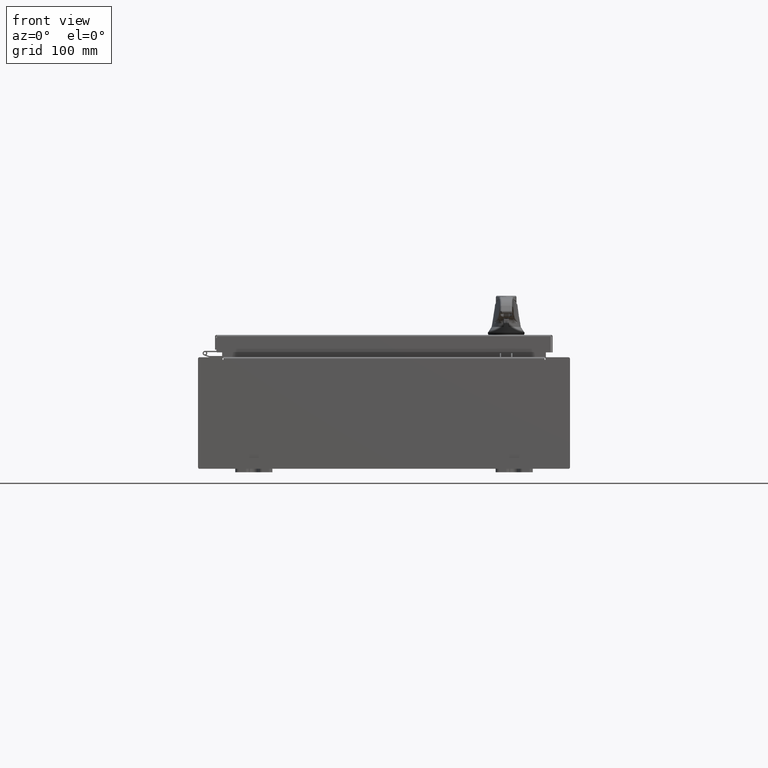
[diagram: clean part render]
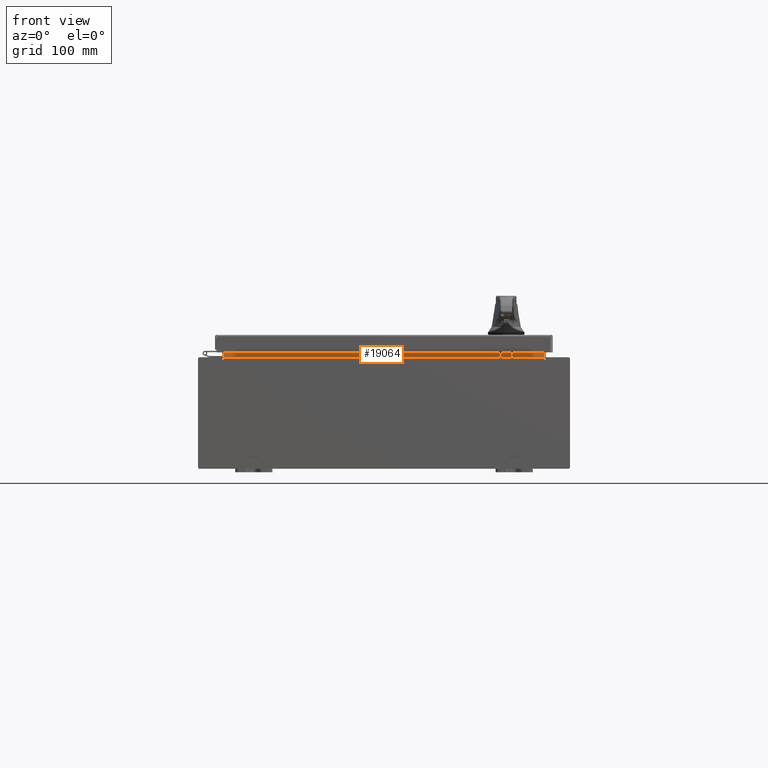
[diagram: same view with one face highlighted and labeled with its STEP entity id]
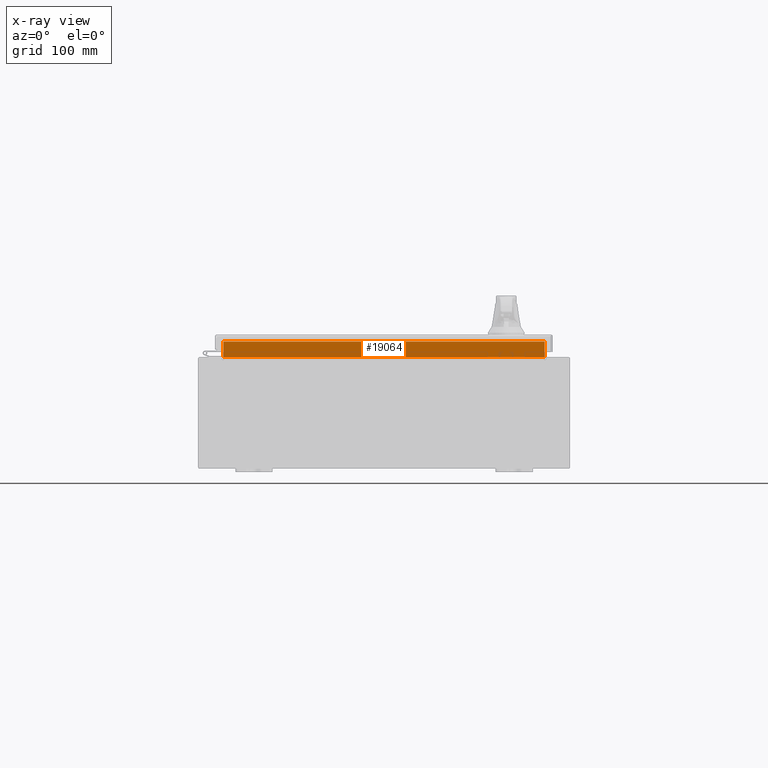
[diagram: x-ray of the same camera — body ghosted, the highlighted face saturated]
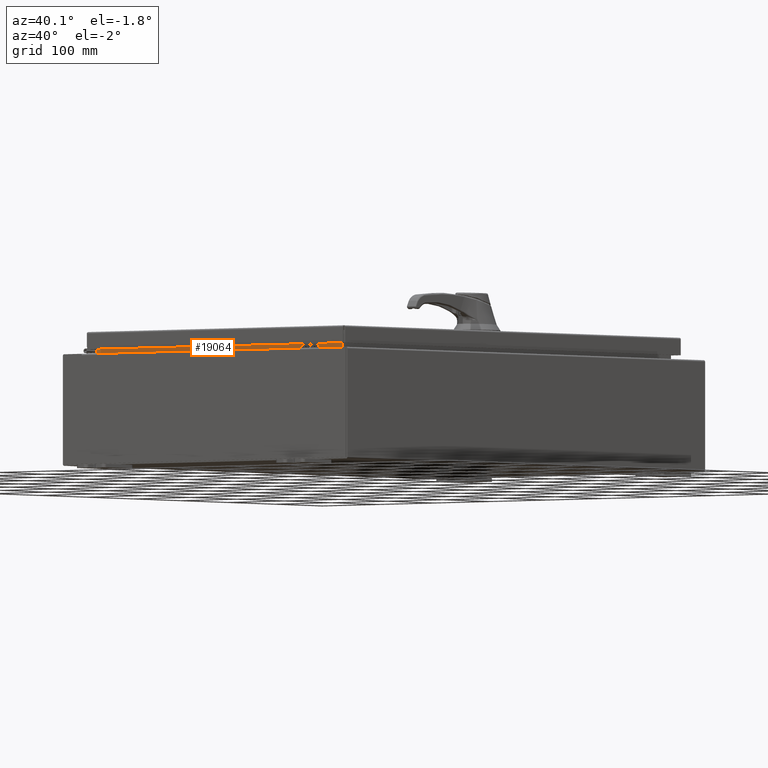
[diagram: same view with one face highlighted and labeled with its STEP entity id]
A machine part, front view. The second image highlights one B-rep face of the part: STEP entity #19064.
The next image is the same camera in x-ray: the body ghosted, the highlighted face saturated — about 0% of this face is hidden behind the body in this view.
A second angle (auxiliary view) of the same face is appended — the face is thin or edge-on in the first view.
In plain terms, the highlighted planar face has unit normal (0, -1, 0).
Its self-contained STEP definition (entity closure, byte-faithful):
#1250 = ORIENTED_EDGE ( 'NONE', *, *, #82592, .F. ) ;
#3507 = DIRECTION ( 'NONE',  ( 1.000000000000000000, 0.0000000000000000000, -6.325772226333218300E-017 ) ) ;
#4755 = VERTEX_POINT ( 'NONE', #44102 ) ;
#13328 = VECTOR ( 'NONE', #91008, 39.37007874015748100 ) ;
#13906 = CARTESIAN_POINT ( 'NONE',  ( -8.637200000000000000, -1.300299999999999800, 3.013000000000004800 ) ) ;
#14813 = CARTESIAN_POINT ( 'NONE',  ( -8.637200000000000000, -1.300299999999999800, 3.000000000000005300 ) ) ;
#15069 = ORIENTED_EDGE ( 'NONE', *, *, #105900, .F. ) ;
#17844 = CARTESIAN_POINT ( 'NONE',  ( 8.637200000000000000, -1.300299999999999800, 3.925300000000005300 ) ) ;
#19064 = ADVANCED_FACE ( 'NONE', ( #85758 ), #78992, .T. ) ;
#20553 = LINE ( 'NONE', #32017, #115147 ) ;
#21356 = CARTESIAN_POINT ( 'NONE',  ( 8.637200000000000000, -1.300299999999999800, 3.837600000000005000 ) ) ;
#24159 = VERTEX_POINT ( 'NONE', #49699 ) ;
#25826 = EDGE_CURVE ( 'NONE', #95751, #24159, #35356, .T. ) ;
#27244 = VECTOR ( 'NONE', #115280, 39.37007874015748100 ) ;
#32017 = CARTESIAN_POINT ( 'NONE',  ( 8.637200000000000000, -1.300300000000000000, 3.837600000000005000 ) ) ;
#35356 = LINE ( 'NONE', #58157, #62557 ) ;
#39002 = EDGE_LOOP ( 'NONE', ( #1250, #15069, #104879, #110115 ) ) ;
#44102 = CARTESIAN_POINT ( 'NONE',  ( -8.637200000000000000, -1.300300000000000000, 3.837600000000005000 ) ) ;
#49699 = CARTESIAN_POINT ( 'NONE',  ( 8.637199999999996400, -1.300299999999999800, 3.013000000000004800 ) ) ;
#50417 = DIRECTION ( 'NONE',  ( -1.000000000000000000, -0.0000000000000000000, -0.0000000000000000000 ) ) ;
#51589 = LINE ( 'NONE', #14813, #27244 ) ;
#58157 = CARTESIAN_POINT ( 'NONE',  ( -8.637200000000000000, -1.300299999999999800, 3.013000000000005200 ) ) ;
#60915 = DIRECTION ( 'NONE',  ( 0.0000000000000000000, -0.0000000000000000000, 1.000000000000000000 ) ) ;
#62557 = VECTOR ( 'NONE', #3507, 39.37007874015748100 ) ;
#69107 = AXIS2_PLACEMENT_3D ( 'NONE', #97458, #115910, #60915 ) ;
#71077 = VERTEX_POINT ( 'NONE', #21356 ) ;
#78992 = PLANE ( 'NONE',  #69107 ) ;
#82592 = EDGE_CURVE ( 'NONE', #4755, #95751, #51589, .T. ) ;
#85758 = FACE_OUTER_BOUND ( 'NONE', #39002, .T. ) ;
#90124 = EDGE_CURVE ( 'NONE', #24159, #71077, #110678, .T. ) ;
#91008 = DIRECTION ( 'NONE',  ( -0.0000000000000000000, -0.0000000000000000000, 1.000000000000000000 ) ) ;
#95751 = VERTEX_POINT ( 'NONE', #13906 ) ;
#97458 = CARTESIAN_POINT ( 'NONE',  ( 0.0000000000000000000, -1.300299999999999800, 0.0000000000000000000 ) ) ;
#104879 = ORIENTED_EDGE ( 'NONE', *, *, #90124, .F. ) ;
#105900 = EDGE_CURVE ( 'NONE', #71077, #4755, #20553, .T. ) ;
#110115 = ORIENTED_EDGE ( 'NONE', *, *, #25826, .F. ) ;
#110678 = LINE ( 'NONE', #17844, #13328 ) ;
#115147 = VECTOR ( 'NONE', #50417, 39.37007874015748100 ) ;
#115280 = DIRECTION ( 'NONE',  ( -0.0000000000000000000, -0.0000000000000000000, -1.000000000000000000 ) ) ;
#115910 = DIRECTION ( 'NONE',  ( 0.0000000000000000000, 1.000000000000000000, 0.0000000000000000000 ) ) ;